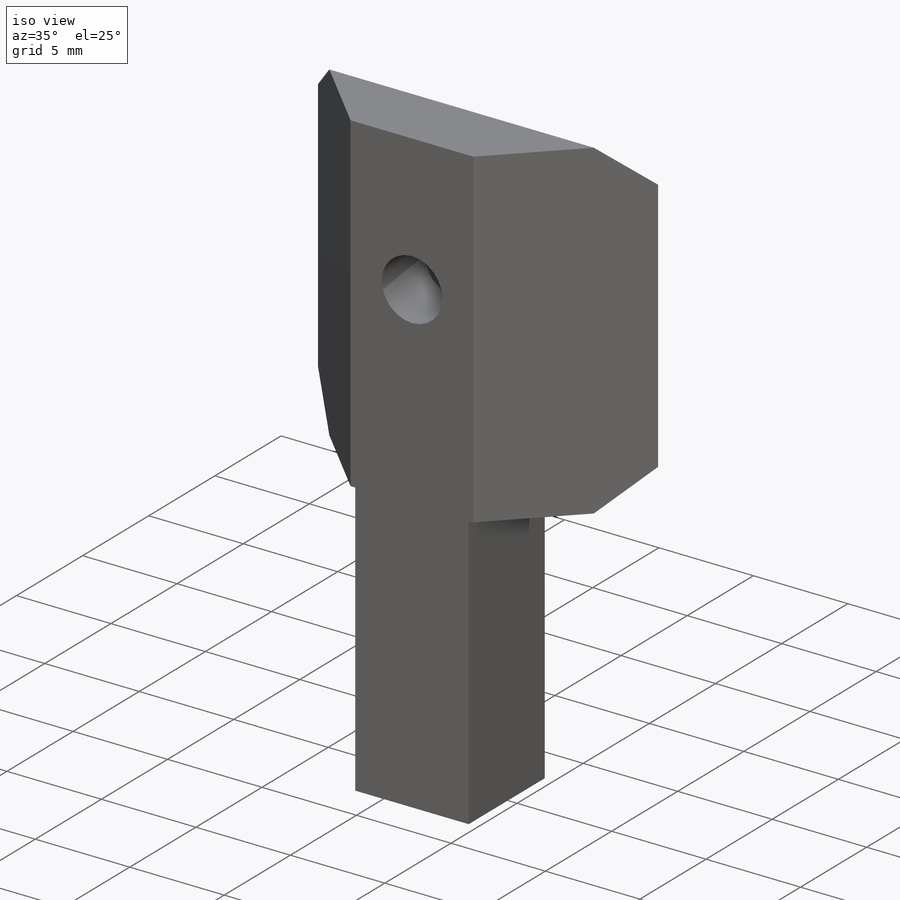
[diagram: iso view]
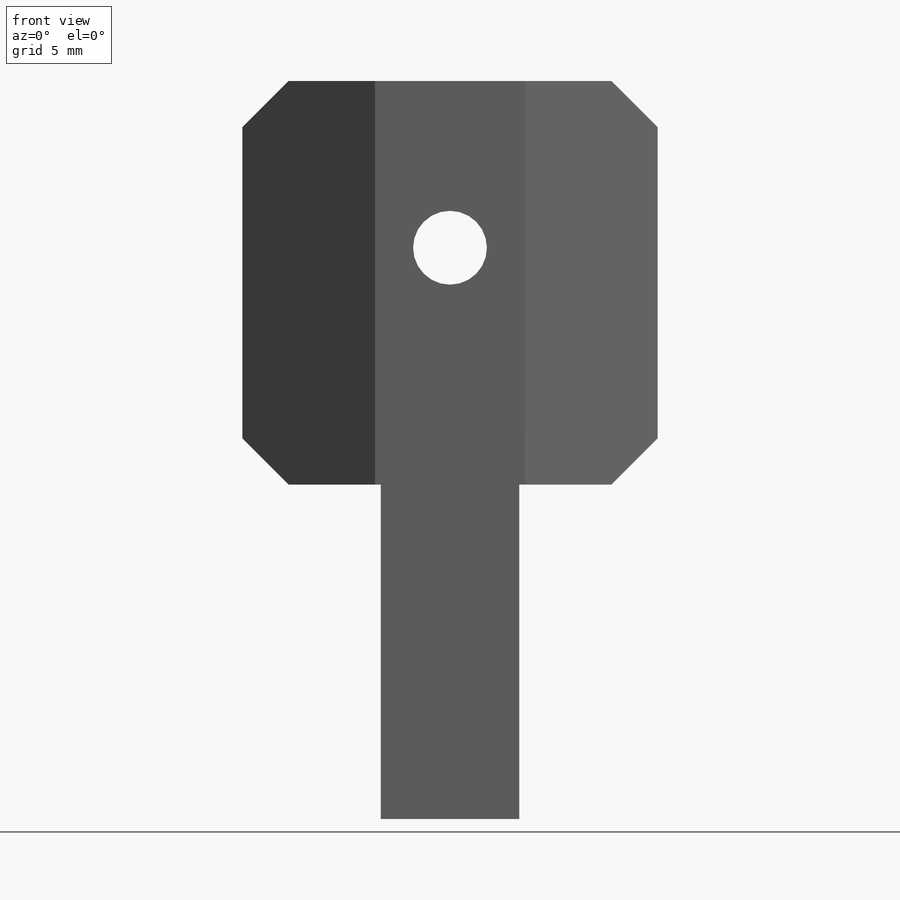
[diagram: front view]
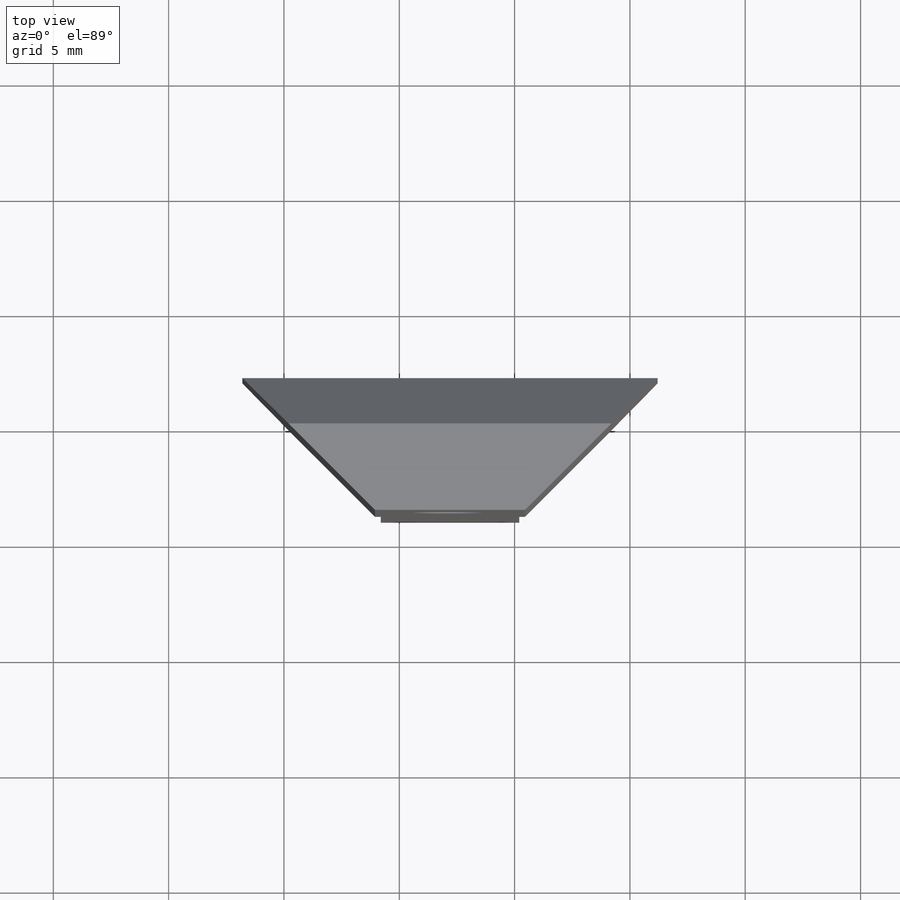
[diagram: top view]
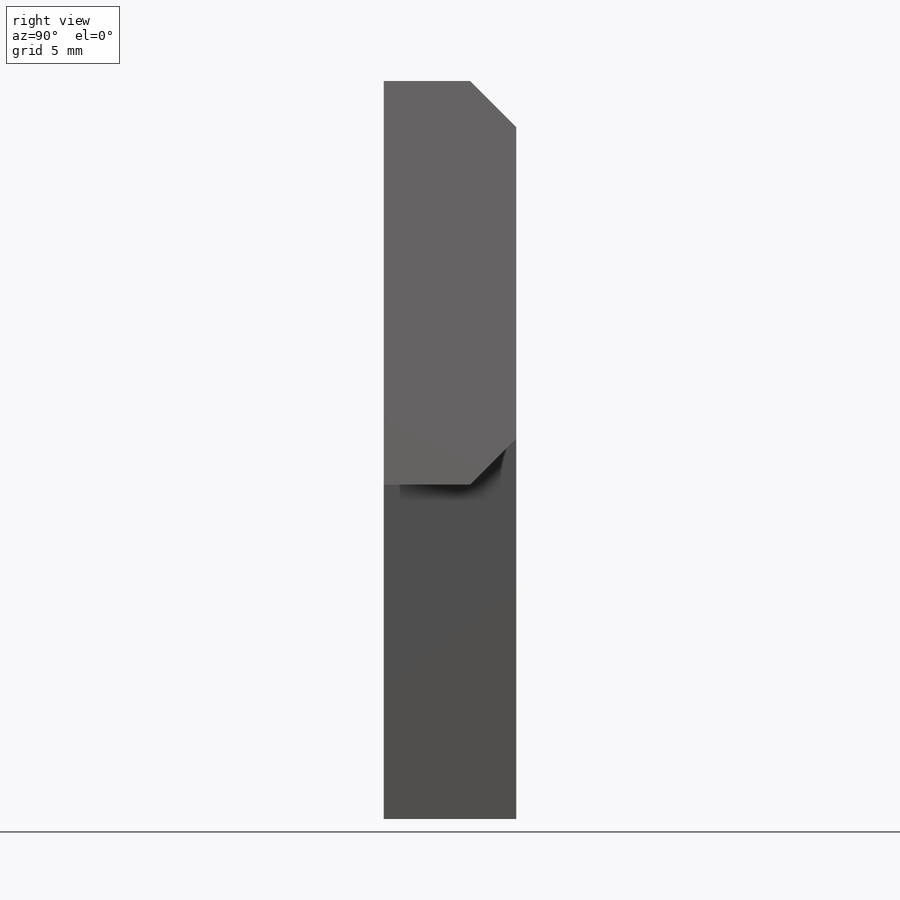
[diagram: right view]
SOLIDWORKS PART (.sldprt)
format: sldprt  version: not decoded by parser v0  size: 174,080 bytes
history: native  units: mm
features: sketch x6, cut_extrude x5, chamfer x2, material x1, extrude x1 (+16 scaffold rows collapsed)
feature tree (31):
  scaffold x16  (default folders/planes/origin — collapsed)
  material  "Material <not specified>"
  sketch  "Sketch1"  dims[c1.D1=12.0mm c1.D3=6.0mm c1.D4=~6.830177mm c2.D1=315.0deg c3.D1=~15.263635mm c4.D1=45.0deg c4.D4=18.0mm c5.D4=45.0deg c5.D2=6.0mm]
  extrude  "Boss-Extrude1"  Depth=32mm
  chamfer  "Chamfer1"  Distance=2mm Angle=45deg
  sketch  "Sketch2"
  cut_extrude  "Cut-Extrude1"  Depth=14.5mm
  chamfer  "Chamfer2"  Distance=2mm Angle=45deg
  sketch  "Sketch3"  dims[D1=3.25mm]
  cut_extrude  "Cut-Extrude2"  Depth=4mm
  sketch  "Sketch4"  dims[D1=3.2mm D2=7.2307mm]
  cut_extrude  "Cut-Extrude3"  [1 undecoded]
  sketch  "Sketch5"  dims[D1=5.75mm]
  cut_extrude  "Cut-Extrude4"  Depth=2.5mm
  sketch  "Sketch6"
  cut_extrude  "Cut-Extrude5"  Depth=0.25mm
decode coverage: 11 of 14 modeling features carry decoded parameters
note: ~ marks probable driven/reference dimensions
note: 1 parameter value undecoded
note: suppression state not decoded; provenance and decode notes live in map.json
